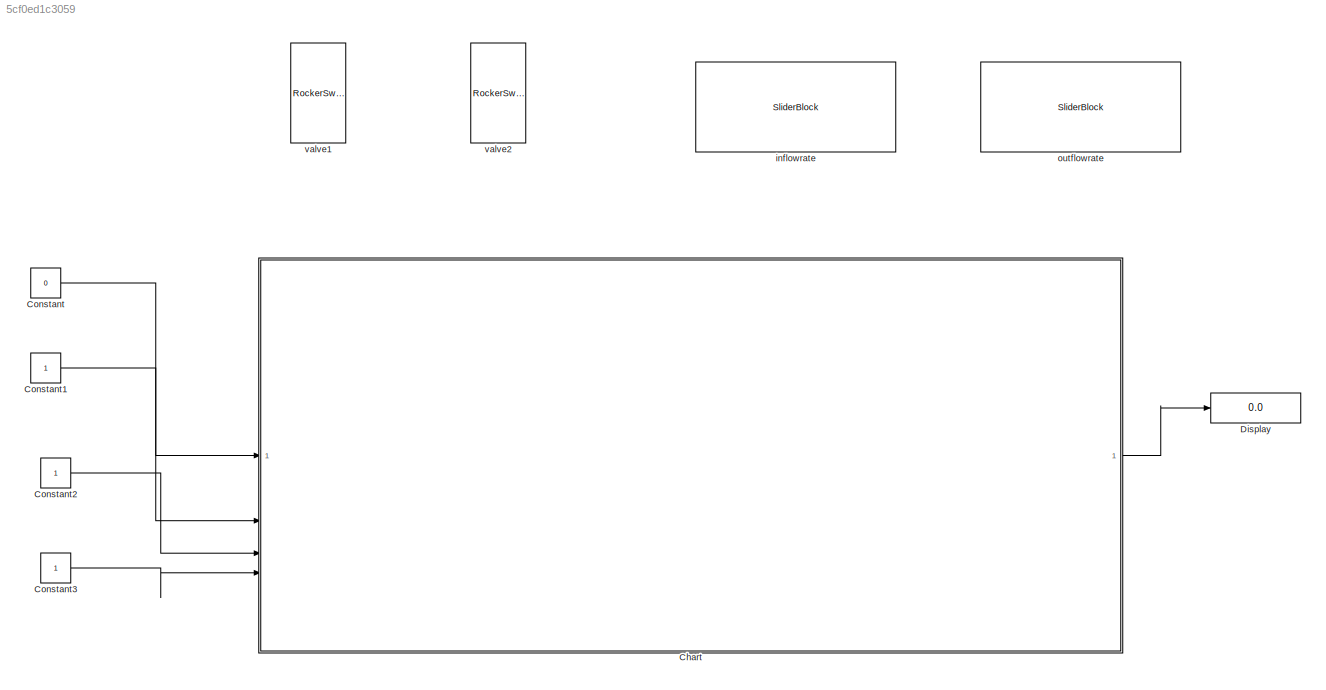
MODEL slx_5cf0ed1c3059
KIND model
CONFIG AbsTol = auto
CONFIG EnableMultiTasking = off
CONFIG FixedStep = auto
CONFIG MaxStep = auto
CONFIG MinStep = auto
CONFIG RelTol = 1e-3
CONFIG SampleTimeConstraint = Unconstrained
CONFIG SolverName = VariableStepAuto
CONFIG StartTime = 0.0
CONFIG StopTime = inf
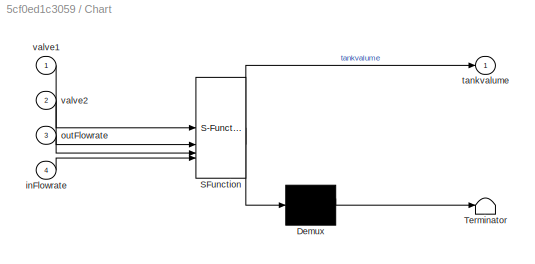
BLOCK [SubSystem] Chart
  ErrorFcn = Stateflow.Translate.translate
  PermitHierarchicalResolution = ExplicitOnly
  SFBlockType = Chart
  TreatAsAtomicUnit = on
BLOCK [Demux] Chart/ Demux 
  Outputs = 1
BLOCK [S-Function] Chart/ SFunction 
  EnableBusSupport = on
  FunctionName = sf_sfun
  PortCounts = [4 2]
  SFcnIsStateOwnerBlock = off
  SFunctionDeploymentMode = off
  Tag = Stateflow S-Function 3
BLOCK [Terminator] Chart/ Terminator 
BLOCK [Inport] Chart/inFlowrate
  Port = 4
BLOCK [Inport] Chart/outFlowrate
  Port = 3
BLOCK [Outport] Chart/tankvalume
BLOCK [Inport] Chart/valve1
BLOCK [Inport] Chart/valve2
  Port = 2
BLOCK [Constant] Constant
  Value = 0
BLOCK [Constant] Constant1
BLOCK [Constant] Constant2
BLOCK [Constant] Constant3
BLOCK [Display] Display
  Decimation = 1
BLOCK [SliderBlock] inflowrate
  ScaleMax = 1
BLOCK [SliderBlock] outflowrate
  ScaleMax = 1
BLOCK [RockerSwitchBlock] valve1
BLOCK [RockerSwitchBlock] valve2
LINE Chart:1 -> Display:1
LINE Constant1:1 -> Chart:2
LINE Constant2:1 -> Chart:3
LINE Constant3:1 -> Chart:4
LINE Constant:1 -> Chart:1
CHART Chart states=7 transitions=8
  STATE_LABEL 'water_tank'
  STATE_LABEL 'fill'
  STATE_LABEL 'valve1_close'
  STATE_LABEL 'valve1_open\n\ntankvalume=min((tankvalume+inFlowrate),100);'
  STATE_LABEL '[valve1==1&&...\ntankvalume<=100]'
  STATE_LABEL '[valve1==0||...\ntankvalume>=100]'
  STATE_LABEL 'empty'
  STATE_LABEL 'valve2_close'
  STATE_LABEL 'valve2_open\n\ntankvalume=max((tankvalume-outFlowrate), 0);'
  STATE_LABEL '[valve2==1&&...\ntankvalume>=0]'
  STATE_LABEL '[valve2==0||...\ntankvalume<=0]'
  STATE_LABEL 'fill'
  STATE_LABEL 'valve1_close'
  STATE_LABEL 'valve1_open\n\ntankvalume=min((tankvalume+inFlowrate),100);'
  STATE_LABEL '[valve1==1&&...\ntankvalume<=100]'
  STATE_LABEL '[valve1==0||...\ntankvalume>=100]'
  STATE_LABEL 'valve1_close'
  STATE_LABEL 'valve1_open\n\ntankvalume=min((tankvalume+inFlowrate),100);'
  STATE_LABEL 'empty'
  STATE_LABEL 'valve2_close'
  STATE_LABEL 'valve2_open\n\ntankvalume=max((tankvalume-outFlowrate), 0);'
  STATE_LABEL '[valve2==1&&...\ntankvalume>=0]'
  STATE_LABEL '[valve2==0||...\ntankvalume<=0]'
  STATE_LABEL 'valve2_close'
  STATE_LABEL 'valve2_open\n\ntankvalume=max((tankvalume-outFlowrate), 0);'
CHART  states=0 transitions=0
